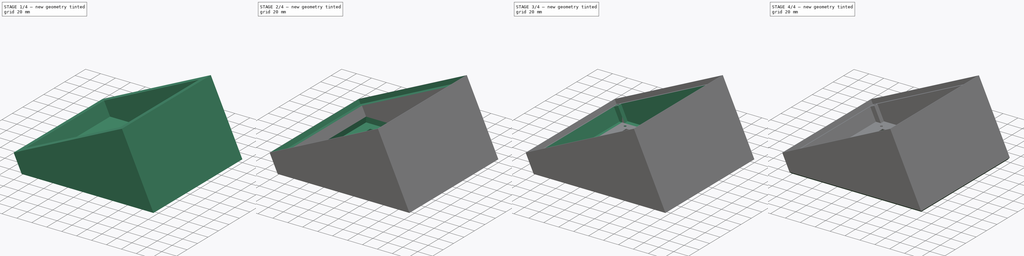
[diagram: build sequence overview — one tinted view per stage of 4, left to right]
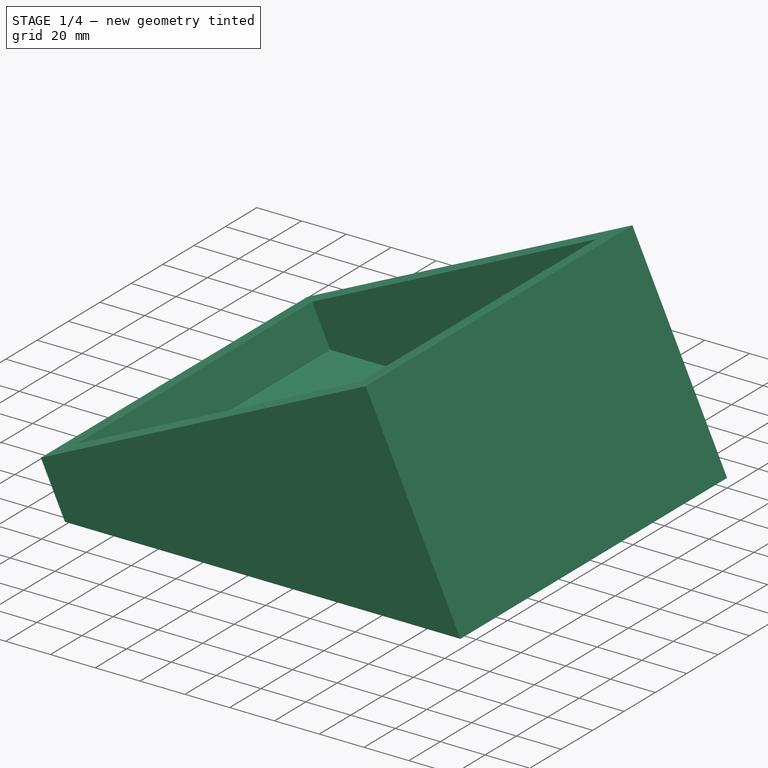
[diagram: stage 1 of 4 — iso view after this stage's code; geometry added in this stage tinted green]
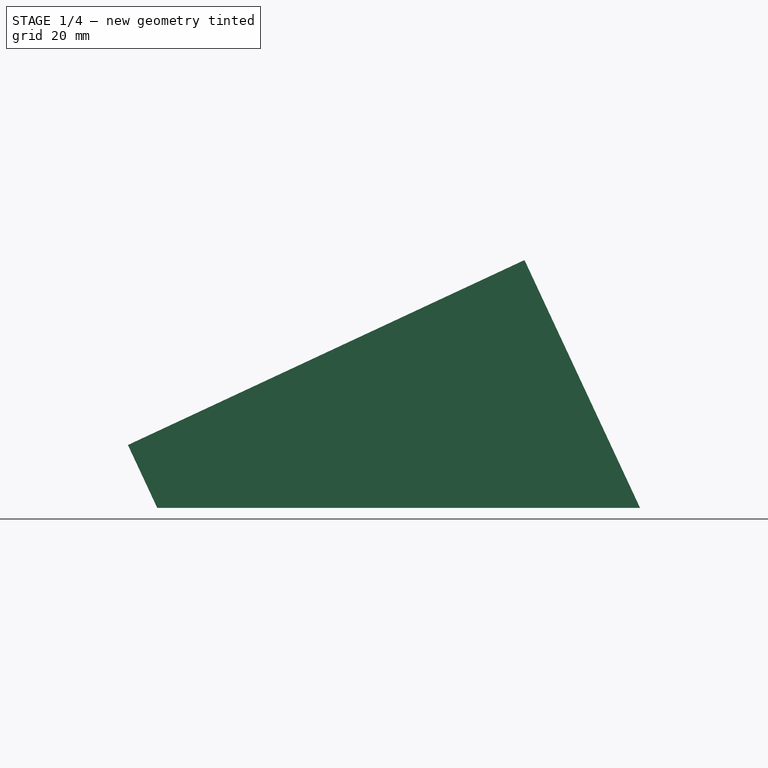
[diagram: stage 1 of 4 — front view after this stage's code; geometry added in this stage tinted green]
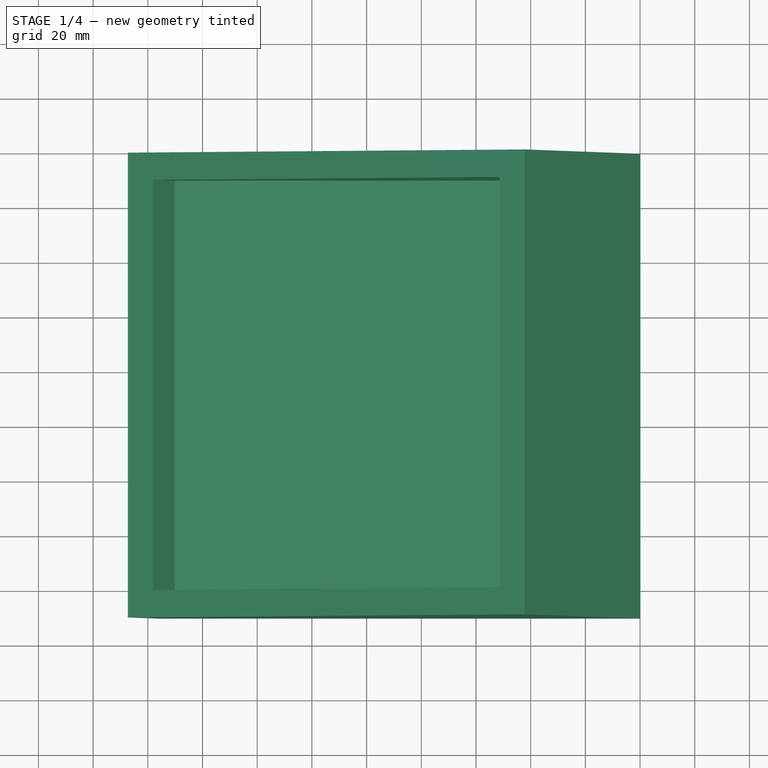
[diagram: stage 1 of 4 — top view after this stage's code; geometry added in this stage tinted green]
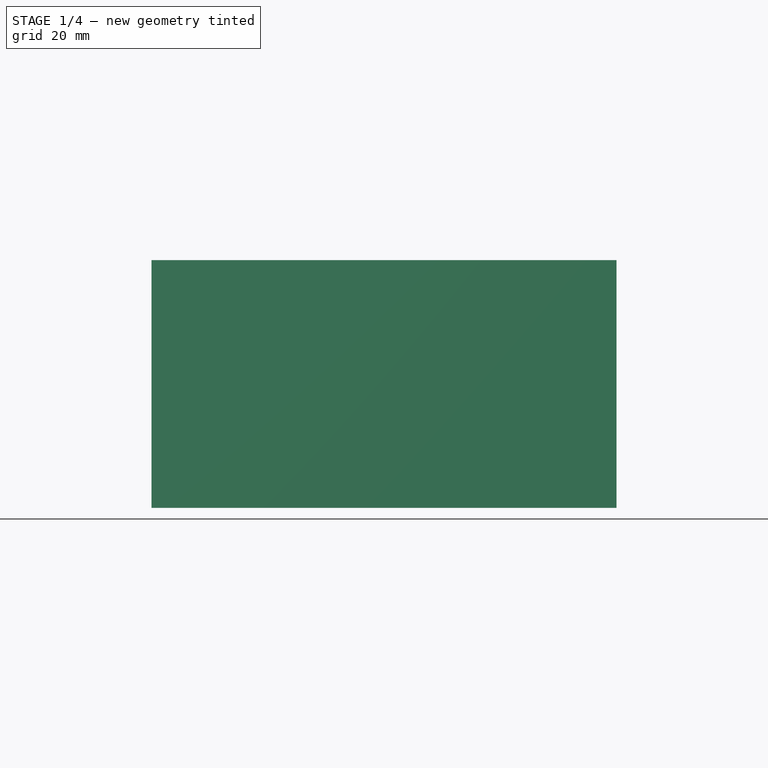
[diagram: stage 1 of 4 — right view after this stage's code; geometry added in this stage tinted green]
FCSTD DOCUMENT  (FreeCAD 0.19R24291 (Git))
Label: Case
License: All rights reserved
LicenseURL: http://en.wikipedia.org/wiki/All_rights_reserved
objects: Sketcher::SketchObject×6, PartDesign::Pocket×6, PartDesign::Chamfer×2, PartDesign::Pad×1, PartDesign::Thickness×1, PartDesign::Body×1, Spreadsheet::Sheet×1
note: 27 computed .brp shape members not serialized (recipe doc carries the construction recipe); baked Part::Feature solids carry a one-line shape summary decoded from their .brp

FEATURE [Sketcher::SketchObject] Sketch
  FullyConstrained = true
  MapMode = 5
  Placement = pos=(0,0,0) rot=(1,0,0;1.5708rad)
  Support = -> [XZ_Plane001]
  expr: Constraints[9] = <<params>>.caseheight
  expr: Constraints[7] = <<params>>.basedepth
  expr: Constraints[6] = <<params>>.caseangle
  sketch-geometry (4):
    g0: LineSegment StartX=-176.54 StartY=0 StartZ=0 EndX=-187.271 EndY=23.0119 EndZ=0
    g1: LineSegment StartX=0 StartY=0 StartZ=0 EndX=-42.2618 EndY=90.6308 EndZ=0
    g2: LineSegment StartX=-176.54 StartY=0 StartZ=0 EndX=0 EndY=0 EndZ=0
    g3: LineSegment StartX=-187.271 StartY=23.0119 StartZ=0 EndX=-42.2618 EndY=90.6308 EndZ=0
  constraints (11):
    c: Coincident(g2,g0)
    c: Coincident(g2,g1)
    c: Horizontal(g2)
    c: Coincident(g3,g0)
    c: Coincident(g3,g1)
    c: Coincident(g1,g-1)
    c: Angle(g-2,g1,g1) = 0.436332
    c: Distance(g1) = 100
    c: Perpendicular(g1,g3)
    c: Distance(g3) = 160
    c: Perpendicular(g0,g3)
FEATURE [PartDesign::Pad] Pad
  AllowMultiFace = false
  Direction = (1,1,1)
  Length = 170
  Length2 = 100
  Placement = pos=(0,0,0) rot=(1,0,0;1.5708rad)
  Profile = -> Sketch
  Type = 0
  expr: Length = <<params>>.casewidth
FEATURE [PartDesign::Thickness] Thickness
  Base = -> Pad [Face3]
  BaseFeature = -> Pad
  Intersection = false
  Join = 1
  Mode = 0
  Reversed = true
  SupportTransform = false
  Value = 10
  expr: Value = <<params>>.casethickness
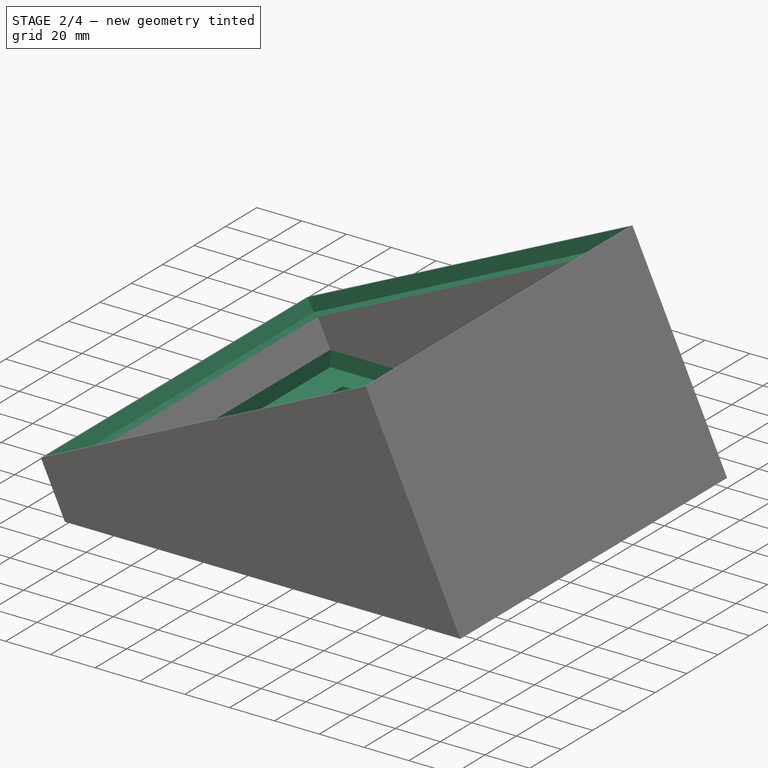
[diagram: stage 2 of 4 — iso view after this stage's code; geometry added in this stage tinted green]
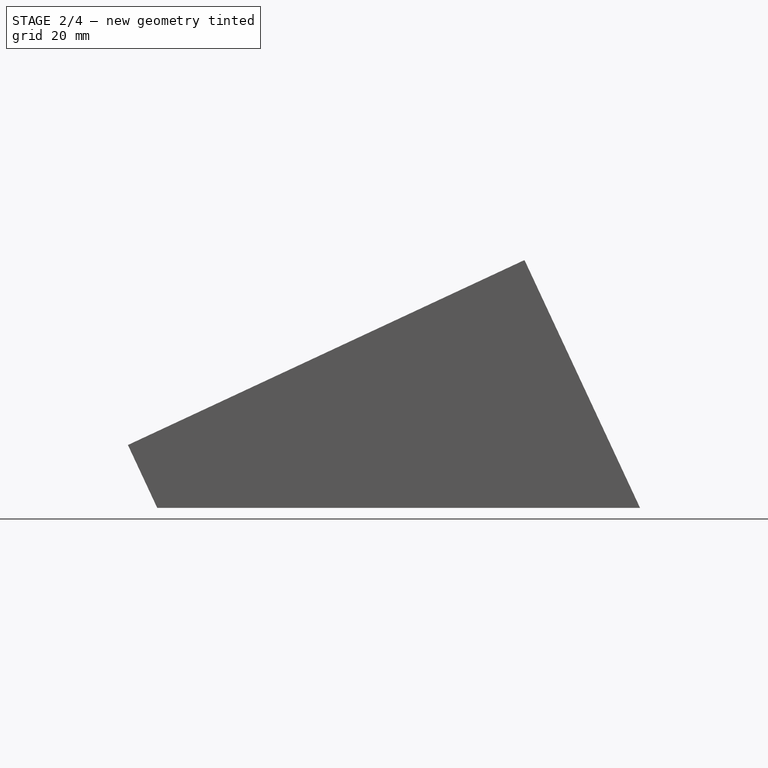
[diagram: stage 2 of 4 — front view after this stage's code; geometry added in this stage tinted green]
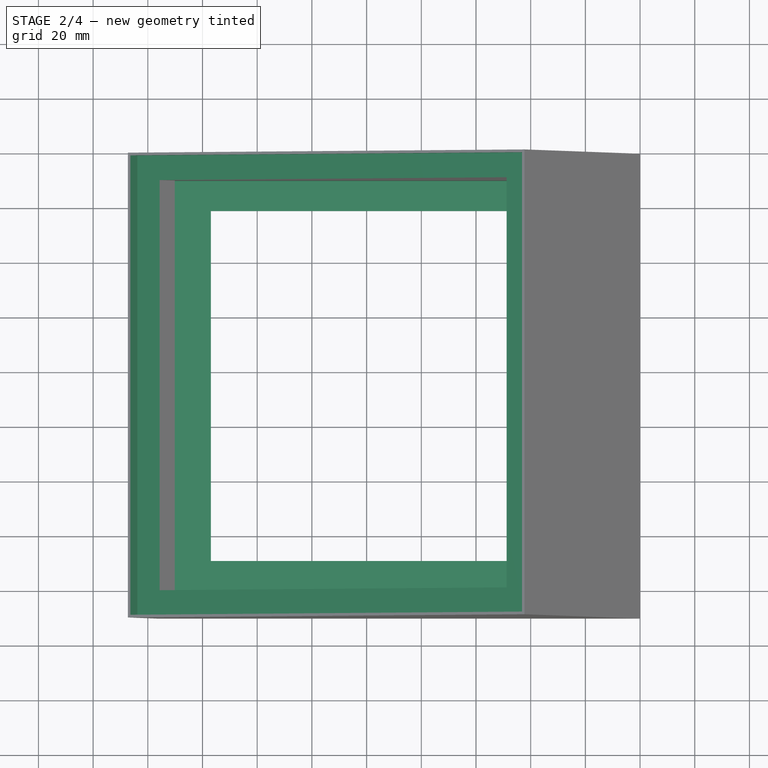
[diagram: stage 2 of 4 — top view after this stage's code; geometry added in this stage tinted green]
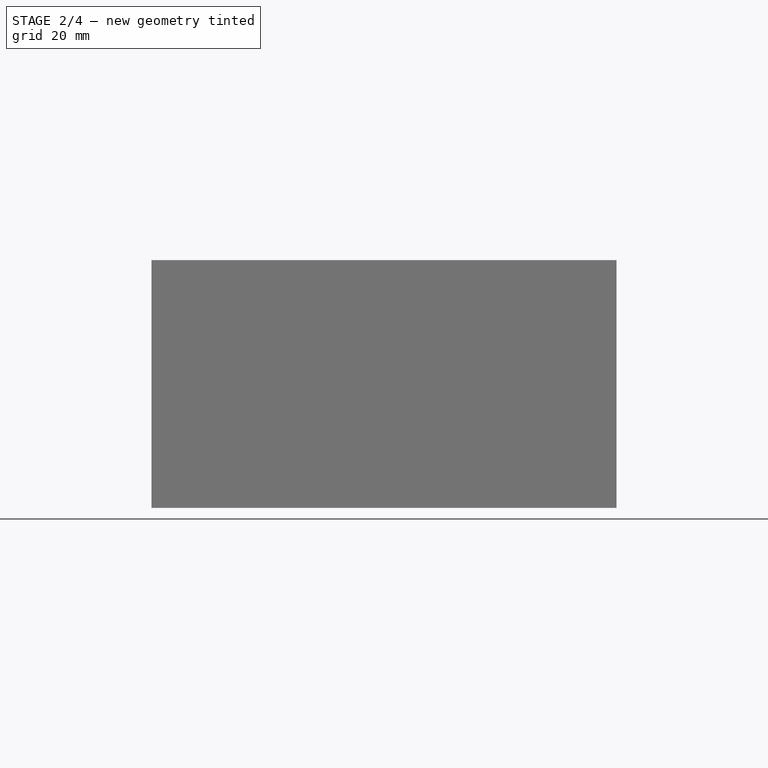
[diagram: stage 2 of 4 — right view after this stage's code; geometry added in this stage tinted green]
FEATURE [Sketcher::SketchObject] Sketch001
  ExternalGeometry = -> [Thickness]
  FullyConstrained = true
  MapMode = 5
  Placement = pos=(0,-2.2e-15,10) rot=(0,0,1;0rad)
  Support = -> [Thickness]
  expr: Constraints[22] = <<params>>.facecutout
  sketch-geometry (8):
    g0: LineSegment StartX=-156.933 StartY=-21 StartZ=0 EndX=-28.9333 EndY=-21 EndZ=0
    g1: LineSegment StartX=-28.9333 StartY=-21 StartZ=0 EndX=-28.9333 EndY=-149 EndZ=0
    g2: LineSegment StartX=-28.9333 StartY=-149 StartZ=0 EndX=-156.933 EndY=-149 EndZ=0
    g3: LineSegment StartX=-156.933 StartY=-149 StartZ=0 EndX=-156.933 EndY=-21 EndZ=0
    g4: LineSegment StartX=-156.933 StartY=-21 StartZ=0 EndX=-170.17 EndY=-21 EndZ=0
    g5: LineSegment StartX=-156.933 StartY=-21 StartZ=0 EndX=-156.933 EndY=-10 EndZ=0
    g6: LineSegment StartX=-28.9333 StartY=-149 StartZ=0 EndX=-28.9333 EndY=-160 EndZ=0
    g7: LineSegment StartX=-28.9333 StartY=-149 StartZ=0 EndX=-15.6969 EndY=-149 EndZ=0
  constraints (24):
    c: Coincident(g0,g1)
    c: Coincident(g1,g2)
    c: Coincident(g2,g3)
    c: Coincident(g3,g0)
    c: Horizontal(g0)
    c: Horizontal(g2)
    c: Vertical(g1)
    c: Vertical(g3)
    c: Equal(g0,g3)
    c: Coincident(g4,g0)
    c: PointOnObject(g4,g-3)
    c: Coincident(g5,g0)
    c: PointOnObject(g5,g-4)
    c: Vertical(g5)
    c: Coincident(g6,g1)
    c: Vertical(g6)
    c: Coincident(g7,g1)
    c: PointOnObject(g7,g-6)
    c: Horizontal(g7)
    c: Horizontal(g4)
    c: Equal(g4,g7)
    c: Equal(g5,g6)
    c: DistanceY(g3,g3) = 128
    c: PointOnObject(g6,g-5)
FEATURE [PartDesign::Pocket] Pocket  label="BottomCutout"
  AllowMultiFace = false
  BaseFeature = -> Thickness
  Length = 5
  Length2 = 100
  Profile = -> Sketch001
  Type = 1
FEATURE [Sketcher::SketchObject] Sketch002
  ExternalGeometry = -> [Pocket]
  FullyConstrained = true
  MapMode = 5
  Placement = pos=(-42.2618,-2.01e-14,90.6308) rot=(0,-1,0;0.436332rad)
  Support = -> [Pocket]
  expr: Constraints[20] = <<params>>.bezeloff
  sketch-geometry (8):
    g0: LineSegment StartX=-159 StartY=-1 StartZ=0 EndX=-1 EndY=-1 EndZ=0
    g1: LineSegment StartX=-1 StartY=-1 StartZ=0 EndX=-1 EndY=-169 EndZ=0
    g2: LineSegment StartX=-1 StartY=-169 StartZ=0 EndX=-159 EndY=-169 EndZ=0
    g3: LineSegment StartX=-159 StartY=-169 StartZ=0 EndX=-159 EndY=-1 EndZ=0
    g4: LineSegment StartX=-159 StartY=-1 StartZ=0 EndX=-159 EndY=0 EndZ=0
    g5: LineSegment StartX=-159 StartY=-1 StartZ=0 EndX=-160 EndY=-1 EndZ=0
    g6: LineSegment StartX=-1 StartY=-169 StartZ=0 EndX=-2.13e-14 EndY=-169 EndZ=0
    g7: LineSegment StartX=-1 StartY=-169 StartZ=0 EndX=-1 EndY=-170 EndZ=0
  constraints (24):
    c: Coincident(g0,g1)
    c: Coincident(g1,g2)
    c: Coincident(g2,g3)
    c: Coincident(g3,g0)
    c: Horizontal(g0)
    c: Horizontal(g2)
    c: Vertical(g1)
    c: Vertical(g3)
    c: Coincident(g4,g0)
    c: PointOnObject(g4,g-1)
    c: Vertical(g4)
    c: Coincident(g5,g0)
    c: PointOnObject(g5,g-3)
    c: Coincident(g6,g1)
    c: PointOnObject(g6,g-4)
    c: Coincident(g7,g1)
    c: PointOnObject(g7,g-5)
    c: Vertical(g7)
    c: Horizontal(g6)
    c: Horizontal(g5)
    c: Distance(g5) = 1
    c: Equal(g4,g5)
    c: Equal(g5,g6)
    c: Equal(g6,g7)
FEATURE [PartDesign::Pocket] Pocket007  label="BackFaceCutout"
  AllowMultiFace = false
  BaseFeature = -> Pocket
  Length = 7
  Length2 = 100
  Profile = -> Pocket [Face11]
  Type = 0
  expr: Length = <<params>>.backfacecutdepth
FEATURE [PartDesign::Pocket] Pocket001  label="TopBezel"
  AllowMultiFace = false
  BaseFeature = -> Pocket007
  Length = 6
  Length2 = 100
  Profile = -> Sketch002
  Type = 0
  expr: Length = <<params>>.bezeldepth
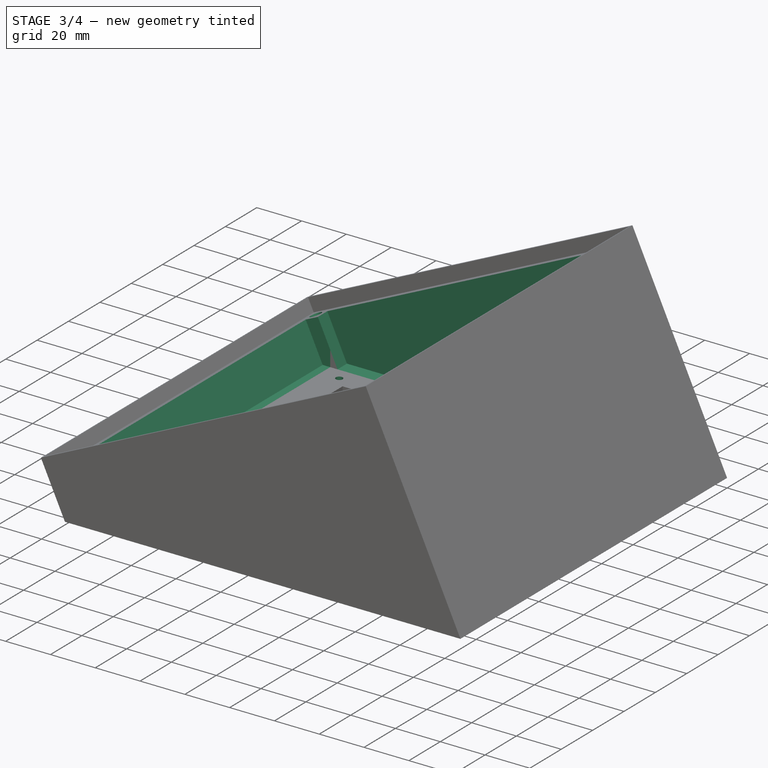
[diagram: stage 3 of 4 — iso view after this stage's code; geometry added in this stage tinted green]
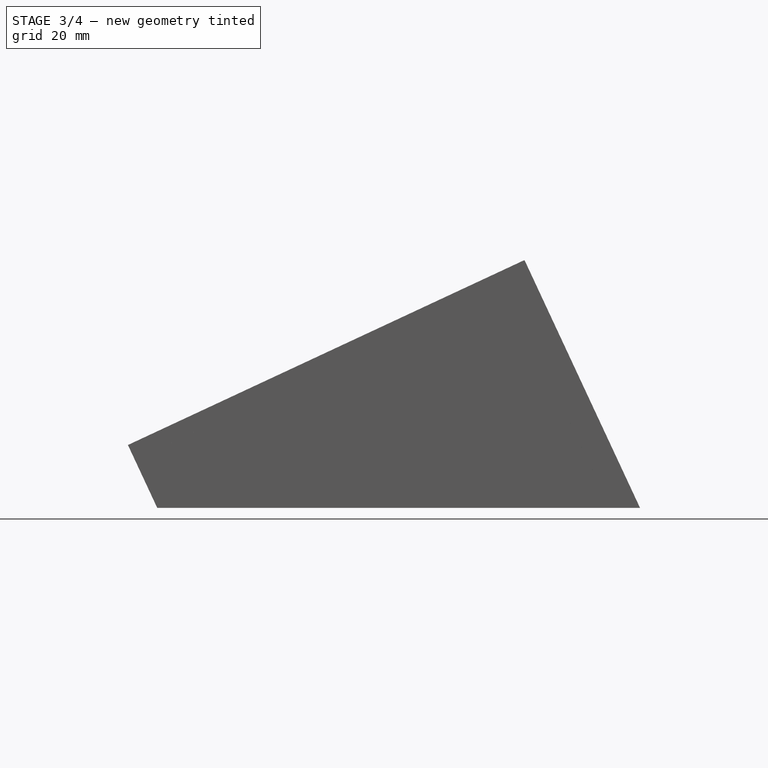
[diagram: stage 3 of 4 — front view after this stage's code; geometry added in this stage tinted green]
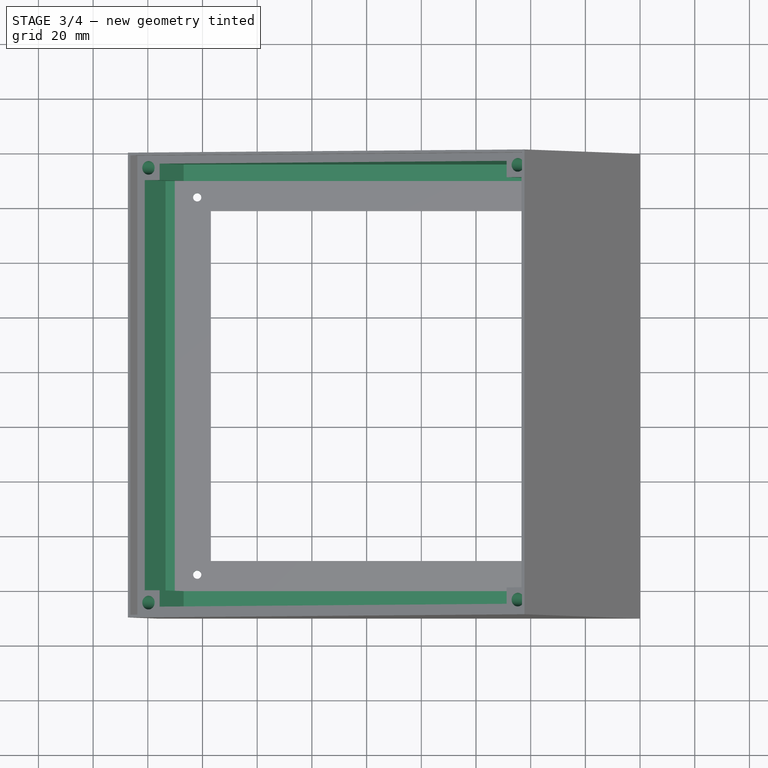
[diagram: stage 3 of 4 — top view after this stage's code; geometry added in this stage tinted green]
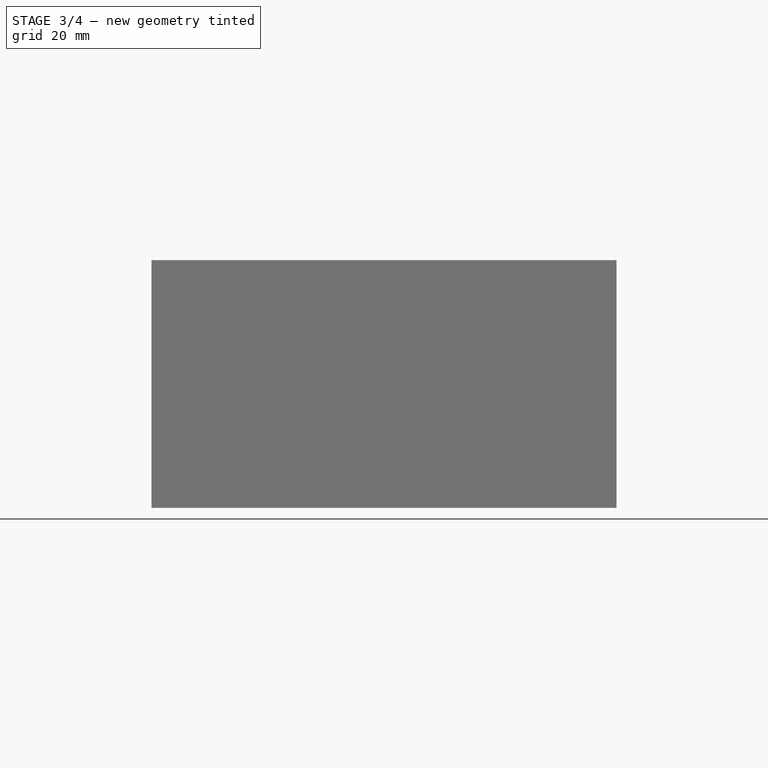
[diagram: stage 3 of 4 — right view after this stage's code; geometry added in this stage tinted green]
FEATURE [Sketcher::SketchObject] Sketch003
  ExternalGeometry = -> [Pocket001]
  FullyConstrained = true
  MapMode = 5
  Placement = pos=(0,-7e-16,3) rot=(0,0,1;0rad)
  Support = -> [Pocket001]
  expr: Constraints[16] = <<params>>.frontholeradius
  expr: Constraints[12] = <<params>>.frontholeoff
  expr: Constraints[11] = <<params>>.frontholeoff
  expr: Constraints[13] = <<params>>.frontholeoff
  expr: Constraints[14] = <<params>>.frontholeoff
  sketch-geometry (8):
    g0: Circle CenterX=-23.9333 CenterY=-154 CenterZ=0 NormalX=0 NormalY=0 NormalZ=1 AngleXU=0 Radius=1.5
    g1: Circle CenterX=-23.9333 CenterY=-16 CenterZ=0 NormalX=0 NormalY=0 NormalZ=1 AngleXU=0 Radius=1.5
    g2: Circle CenterX=-161.933 CenterY=-154 CenterZ=0 NormalX=0 NormalY=0 NormalZ=1 AngleXU=0 Radius=1.5
    g3: LineSegment StartX=-161.933 StartY=-16 StartZ=0 EndX=-23.9333 EndY=-16 EndZ=0
    g4: LineSegment StartX=-161.933 StartY=-16 StartZ=0 EndX=-161.933 EndY=-154 EndZ=0
    g5: LineSegment StartX=-161.933 StartY=-154 StartZ=0 EndX=-23.9333 EndY=-154 EndZ=0
    g6: LineSegment StartX=-23.9333 StartY=-154 StartZ=0 EndX=-23.9333 EndY=-16 EndZ=0
    g7: Circle CenterX=-161.933 CenterY=-16 CenterZ=0 NormalX=0 NormalY=0 NormalZ=1 AngleXU=0 Radius=1.5
  constraints (20):
    c: Coincident(g3,g1)
    c: Horizontal(g3)
    c: Coincident(g4,g2)
    c: Vertical(g4)
    c: Coincident(g5,g2)
    c: Coincident(g5,g0)
    c: Horizontal(g5)
    c: Coincident(g6,g0)
    c: Coincident(g6,g1)
    c: Vertical(g6)
    c: Coincident(g4,g3)
    c: DistanceX(g3,g-4) = 5
    c: DistanceY(g-4,g3) = 5
    c: DistanceX(g-4,g1) = 5
    c: DistanceY(g2,g-3) = 5
    c: Coincident(g7,g3)
    c: Radius(g7) = 1.5
    c: Equal(g0,g1)
    c: Equal(g1,g2)
    c: Equal(g2,g7)
FEATURE [PartDesign::Pocket] Pocket002  label="TopHoles"
  AllowMultiFace = false
  BaseFeature = -> Pocket001
  Length = 5
  Length2 = 100
  Profile = -> Sketch003
  Type = 1
FEATURE [Sketcher::SketchObject] Sketch004
  ExternalGeometry = -> [Pocket002]
  FullyConstrained = true
  MapMode = 5
  Placement = pos=(-39.7261,-2.09e-14,85.1929) rot=(0,-1,0;0.436332rad)
  Support = -> [Pocket002]
  expr: Constraints[0] = <<params>>.backholeradius
  sketch-geometry (12):
    g0: Circle CenterX=-154.5 CenterY=-5.5 CenterZ=0 NormalX=0 NormalY=0 NormalZ=1 AngleXU=0 Radius=2.5
    g1: Circle CenterX=-5.5 CenterY=-5.5 CenterZ=0 NormalX=0 NormalY=0 NormalZ=1 AngleXU=0 Radius=2.5
    g2: Circle CenterX=-5.5 CenterY=-164.5 CenterZ=0 NormalX=0 NormalY=0 NormalZ=1 AngleXU=0 Radius=2.5
    g3: Circle CenterX=-154.5 CenterY=-164.5 CenterZ=0 NormalX=0 NormalY=0 NormalZ=1 AngleXU=0 Radius=2.5
    g4: LineSegment StartX=-159 StartY=-1 StartZ=0 EndX=-154.5 EndY=-5.5 EndZ=0
    g5: LineSegment StartX=-154.5 StartY=-5.5 StartZ=0 EndX=-150 EndY=-10 EndZ=0
    g6: LineSegment StartX=-154.5 StartY=-5.5 StartZ=0 EndX=-5.5 EndY=-5.5 EndZ=0
    g7: LineSegment StartX=-154.5 StartY=-5.5 StartZ=0 EndX=-154.5 EndY=-164.5 EndZ=0
    g8: LineSegment StartX=-154.5 StartY=-164.5 StartZ=0 EndX=-5.5 EndY=-164.5 EndZ=0
    g9: LineSegment StartX=-5.5 StartY=-164.5 StartZ=0 EndX=-5.5 EndY=-5.5 EndZ=0
    g10: LineSegment StartX=-5.5 StartY=-5.5 StartZ=0 EndX=-10 EndY=-10 EndZ=0
    g11: LineSegment StartX=-150 StartY=-160 StartZ=0 EndX=-154.5 EndY=-164.5 EndZ=0
  constraints (29):
    c: Radius(g3) = 2.5
    c: Equal(g0,g3)
    c: Equal(g3,g2)
    c: Equal(g1,g0)
    c: Coincident(g4,g0)
    c: Coincident(g4,g-4)
    c: Coincident(g5,g0)
    c: Equal(g4,g5)
    c: Parallel(g4,g5)
    c: Coincident(g5,g-3)
    c: Coincident(g6,g0)
    c: Horizontal(g6)
    c: Coincident(g6,g1)
    c: Vertical(g7)
    c: Coincident(g3,g7)
    c: Coincident(g0,g7)
    c: Coincident(g8,g3)
    c: Horizontal(g8)
    c: Coincident(g9,g2)
    c: Coincident(g9,g1)
    c: Vertical(g9)
    c: Equal(g6,g8)
    c: Equal(g7,g9)
    c: Coincident(g10,g-3)
    c: Coincident(g10,g1)
    c: Equal(g5,g10)
    c: Coincident(g11,g-5)
    c: Coincident(g11,g3)
    c: Equal(g5,g11)
FEATURE [PartDesign::Pocket] Pocket008  label="BottomHoles"
  AllowMultiFace = false
  BaseFeature = -> Pocket002
  Length = 10
  Length2 = 100
  Profile = -> Sketch004
  Type = 0
  expr: Length = <<params>>.backholedepth
FEATURE [Sketcher::SketchObject] Sketch007
  ExternalGeometry = -> [Pocket008]
  FullyConstrained = true
  MapMode = 5
  Placement = pos=(-39.7261,-2.09e-14,85.1929) rot=(0,-1,0;0.436332rad)
  Support = -> [Pocket008]
  expr: Constraints[1] = <<params>>.backcutoff
  sketch-geometry (12):
    g0: LineSegment StartX=-150 StartY=-10 StartZ=0 EndX=-156 EndY=-10 EndZ=0
    g1: LineSegment StartX=-150 StartY=-10 StartZ=0 EndX=-150 EndY=-4 EndZ=0
    g2: LineSegment StartX=-150 StartY=-4 StartZ=0 EndX=-10 EndY=-4 EndZ=0
    g3: LineSegment StartX=-10 StartY=-4 StartZ=0 EndX=-10 EndY=-10 EndZ=0
    g4: LineSegment StartX=-10 StartY=-10 StartZ=0 EndX=-4 EndY=-10 EndZ=0
    g5: LineSegment StartX=-4 StartY=-10 StartZ=0 EndX=-4 EndY=-160 EndZ=0
    g6: LineSegment StartX=-4 StartY=-160 StartZ=0 EndX=-10 EndY=-160 EndZ=0
    g7: LineSegment StartX=-10 StartY=-160 StartZ=0 EndX=-10 EndY=-166 EndZ=0
    g8: LineSegment StartX=-10 StartY=-166 StartZ=0 EndX=-150 EndY=-166 EndZ=0
    g9: LineSegment StartX=-150 StartY=-166 StartZ=0 EndX=-150 EndY=-160 EndZ=0
    g10: LineSegment StartX=-150 StartY=-160 StartZ=0 EndX=-156 EndY=-160 EndZ=0
    g11: LineSegment StartX=-156 StartY=-160 StartZ=0 EndX=-156 EndY=-10 EndZ=0
  constraints (34):
    c: Horizontal(g0)
    c: DistanceX(g-5,g0) = 3
    c: Vertical(g1)
    c: Coincident(g6,g5)
    c: Horizontal(g6)
    c: Coincident(g4,g3)
    c: Coincident(g4,g5)
    c: Horizontal(g4)
    c: Coincident(g7,g6)
    c: Coincident(g7,g8)
    c: Vertical(g7)
    c: Coincident(g9,g8)
    c: Vertical(g9)
    c: Coincident(g0,g11)
    c: Horizontal(g10)
    c: Coincident(g10,g11)
    c: Coincident(g1,g2)
    c: Coincident(g3,g2)
    c: Vertical(g3)
    c: Coincident(g1,g0)
    c: Coincident(g10,g9)
    c: Equal(g4,g0)
    c: Equal(g0,g1)
    c: Equal(g1,g3)
    c: Equal(g3,g6)
    c: Equal(g6,g7)
    c: Equal(g7,g10)
    c: Equal(g10,g9)
    c: Coincident(g0,g-6)
    c: Vertical(g11)
    c: Horizontal(g8)
    c: Coincident(g6,g-7)
    c: Vertical(g5)
    c: Horizontal(g2)
FEATURE [PartDesign::Pocket] Pocket009  label="BackCutout"
  AllowMultiFace = false
  BaseFeature = -> Pocket008
  Length = 0
  Length2 = 100
  Profile = -> Sketch007
  Type = 3
  UpToFace = -> Pocket008 [Face15]
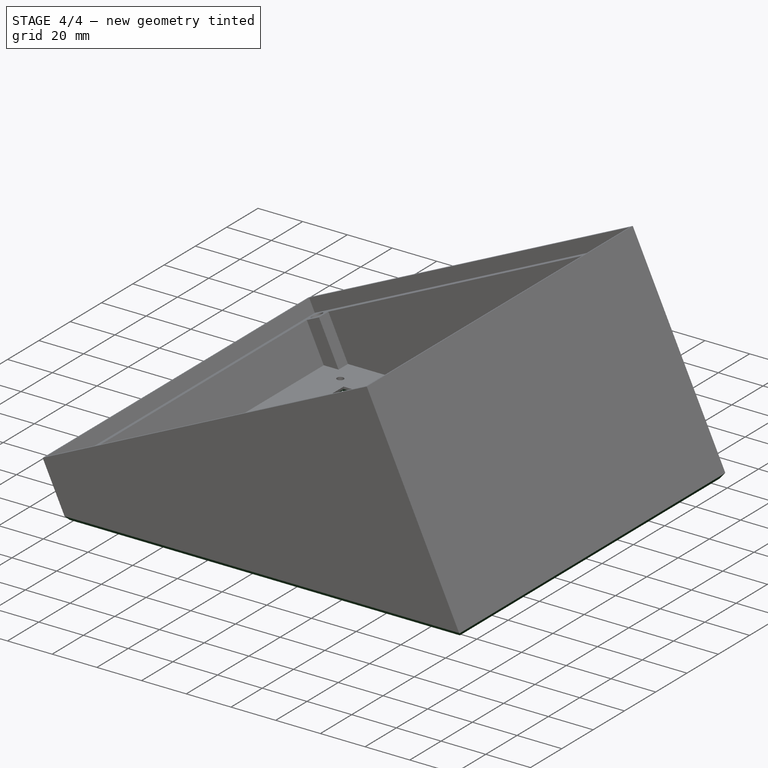
[diagram: stage 4 of 4 — iso view after this stage's code; geometry added in this stage tinted green]
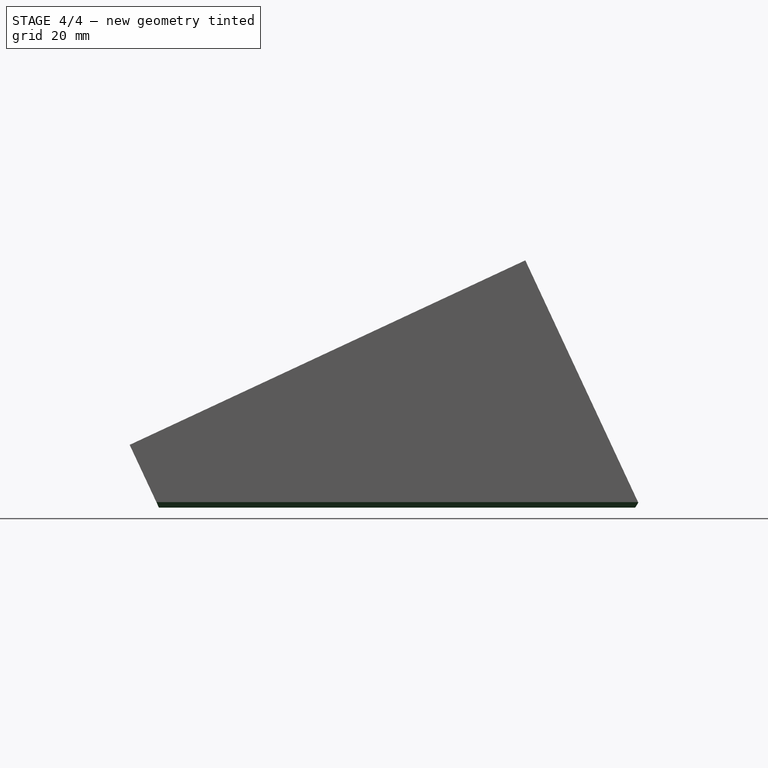
[diagram: stage 4 of 4 — front view after this stage's code; geometry added in this stage tinted green]
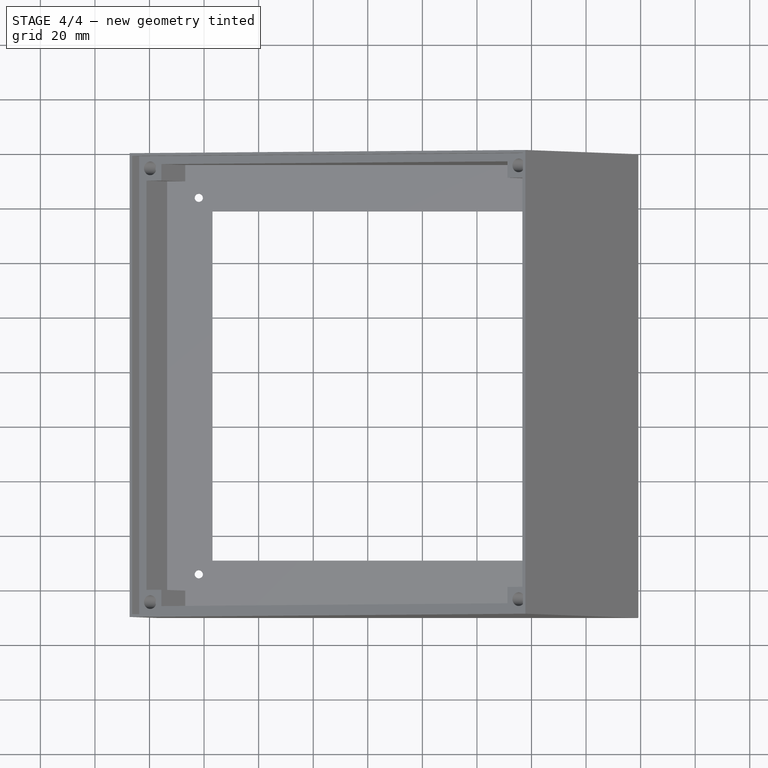
[diagram: stage 4 of 4 — top view after this stage's code; geometry added in this stage tinted green]
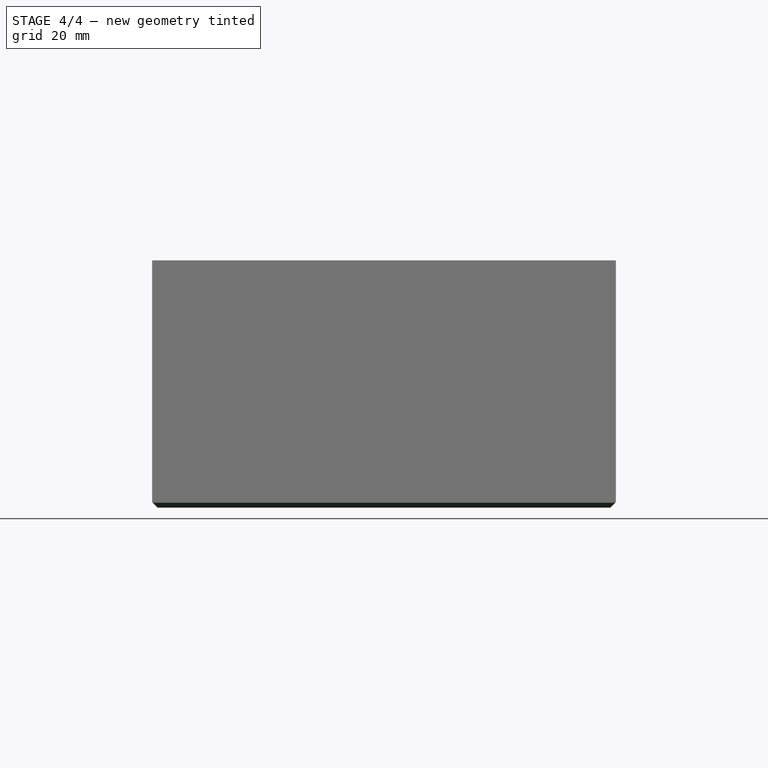
[diagram: stage 4 of 4 — right view after this stage's code; geometry added in this stage tinted green]
FEATURE [PartDesign::Chamfer] Chamfer  label="OuterChamfer"
  Angle = 45
  Base = -> Pocket009 [Edge2,Edge3,Edge4]
  BaseFeature = -> Pocket009
  ChamferType = 0
  FlipDirection = false
  Size = 2
  Size2 = 1
  SupportTransform = false
  expr: Size = <<params>>.outchamfer
FEATURE [PartDesign::Chamfer] Chamfer001  label="InnerChamfer"
  Angle = 45
  Base = -> Chamfer [Edge8,Edge9,Edge10,Edge11]
  BaseFeature = -> Chamfer
  ChamferType = 0
  FlipDirection = false
  Size = 2
  Size2 = 1
  SupportTransform = false
  expr: Size = <<params>>.inchamfer
FEATURE [PartDesign::Body] Body  label="Base"
  Group = -> [Sketch,Pad,Thickness,Sketch001,Pocket,Pocket007,Sketch002,Pocket001,Sketch003,Pocket002,Pocket008,Sketch004,Sketch007,Pocket009,Chamfer,Chamfer001]
  Origin = -> Origin001
  Tip = -> Chamfer001
FEATURE [Spreadsheet::Sheet] Spreadsheet  label="params"
  cells = A1=basedepth; B1(basedepth)=100; D1=frontholeradius; E1(frontholeradius)=1.5; A2=caseheight; B2(caseheight)=160; D2=frontholeoff; E2(frontholeoff)=5; A3=casewidth; B3(casewidth)=170; A4=caseangle; B4(caseangle)=25; D4=backholeradius; E4(backholeradius)=2.5; A5=casethickness; B5(casethickness)=10; D5=backholedepth; E5(backholedepth)=10; A6=facecutout; B6(facecutout)=128; D7=outchamfer; E7(outchamfer)=2; A8=bezeldepth; B8(bezeldepth)=6; D8=inchamfer; E8(inchamfer)=2; A9=bezeloff; B9(bezeloff)=1; A11=backfacecutdepth; B11(backfacecutdepth)=7; A12=backcutoff; B12(backcutoff)=3
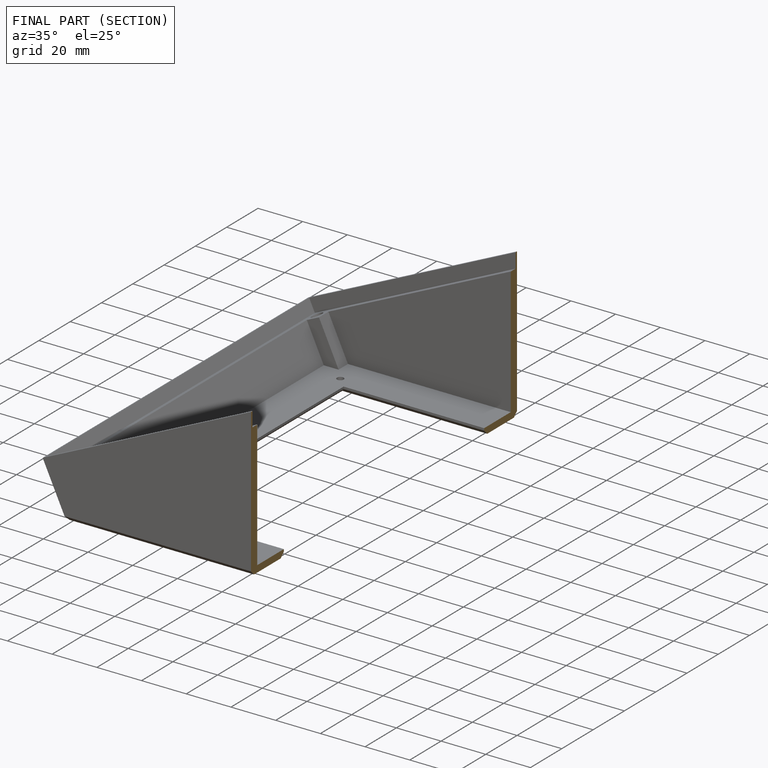
[diagram: finished part — half-section view (interior)]
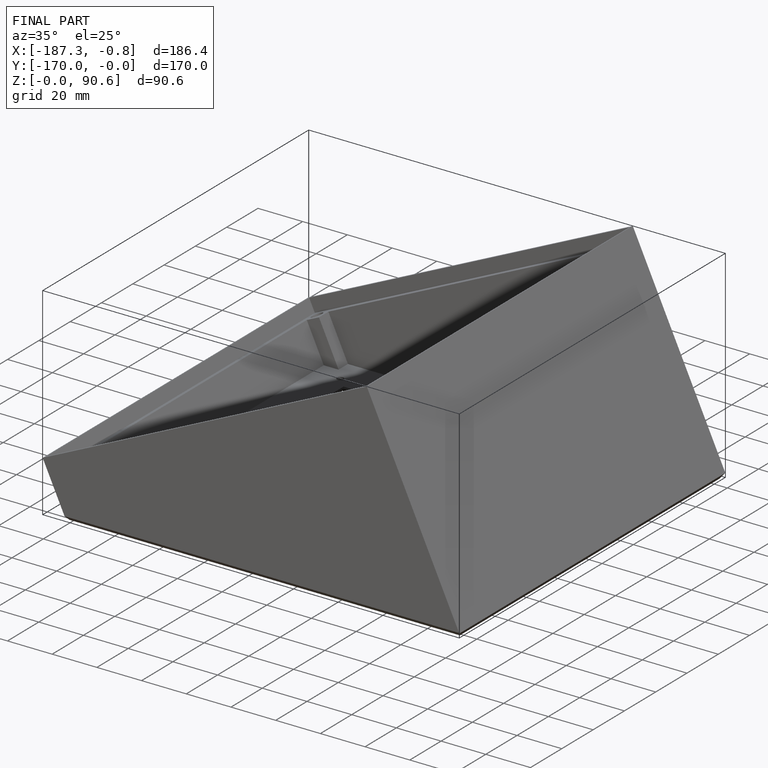
[diagram: finished part — iso view with bounding-box wireframe]
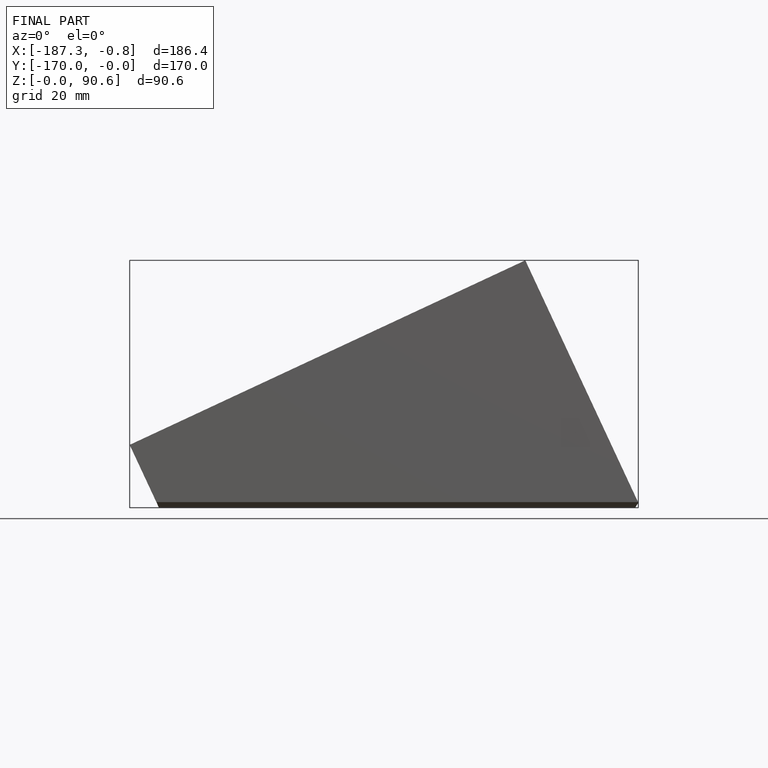
[diagram: finished part — front view with bounding-box wireframe]
